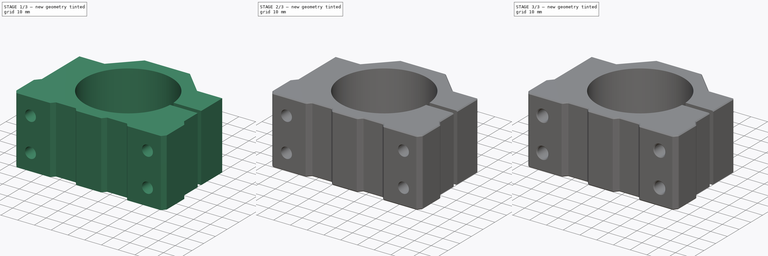
[diagram: build sequence overview — one tinted view per stage of 3, left to right]
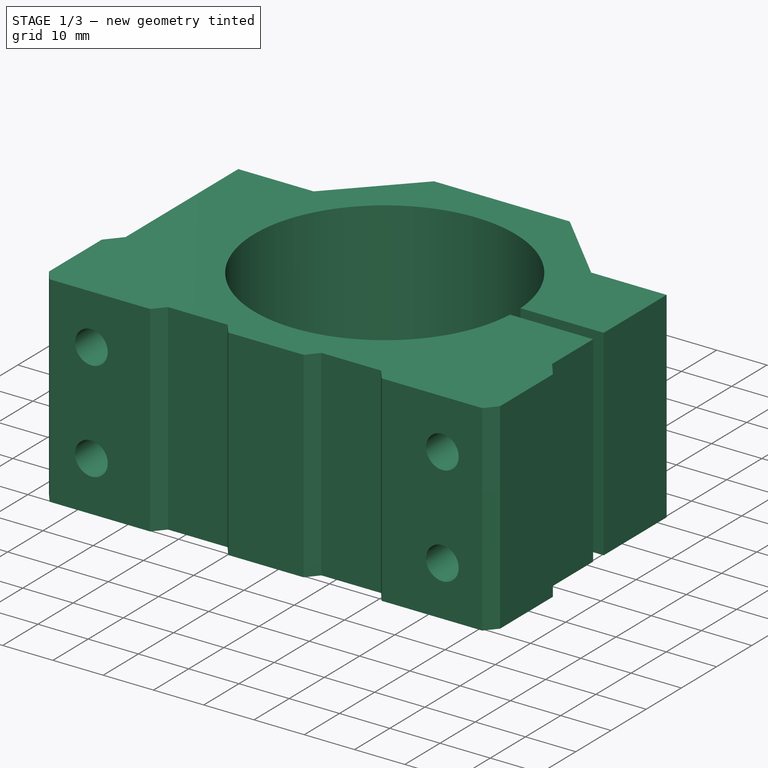
[diagram: stage 1 of 3 — iso view after this stage's code; geometry added in this stage tinted green]
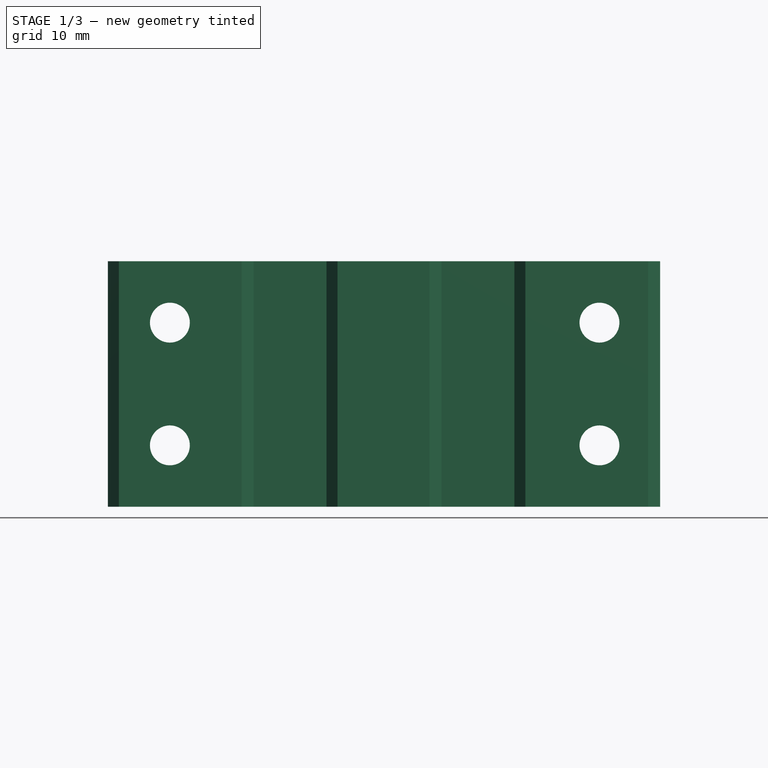
[diagram: stage 1 of 3 — front view after this stage's code; geometry added in this stage tinted green]
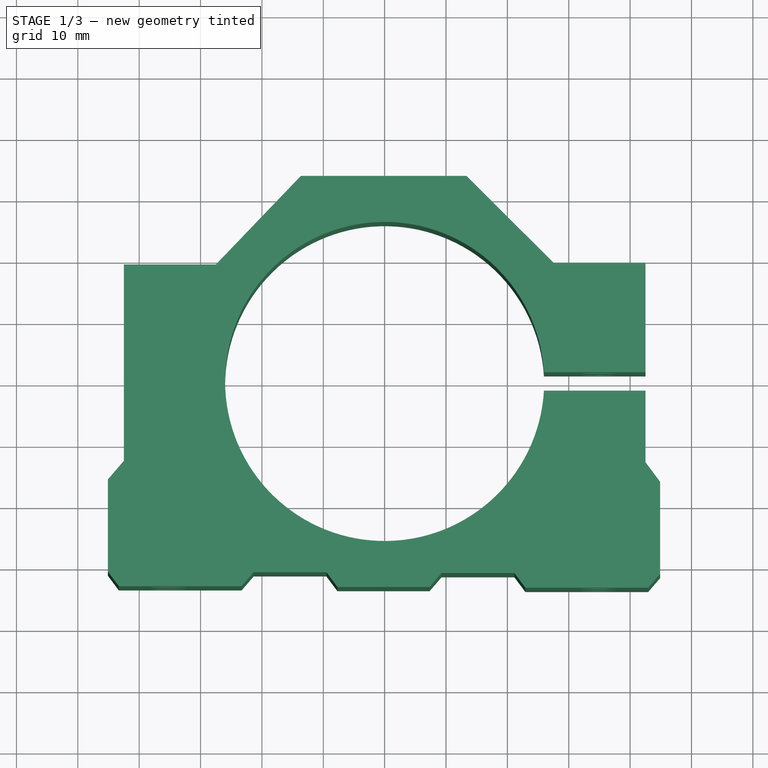
[diagram: stage 1 of 3 — top view after this stage's code; geometry added in this stage tinted green]
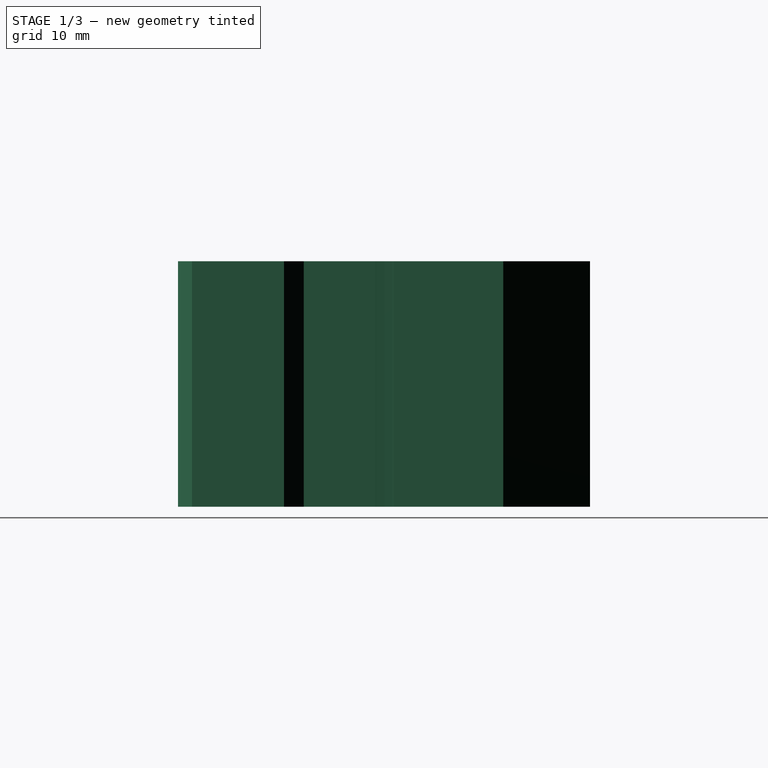
[diagram: stage 1 of 3 — right view after this stage's code; geometry added in this stage tinted green]
FCSTD DOCUMENT  (FreeCAD 0.19R23964 (Git))
Label: spindelmount52mm
License: All rights reserved
LicenseURL: http://en.wikipedia.org/wiki/All_rights_reserved
objects: PartDesign::Chamfer×4, Sketcher::SketchObject×2, PartDesign::Pad×1, PartDesign::Hole×1, PartDesign::Fillet×1, PartDesign::Body×1
note: 17 computed .brp shape members not serialized (recipe doc carries the construction recipe); baked Part::Feature solids carry a one-line shape summary decoded from their .brp

FEATURE [Sketcher::SketchObject] Sketch  label="Spindelhalter-Grundskizze"
  FullyConstrained = true
  MapMode = 5
  Support = -> [XY_Plane]
  sketch-geometry (26):
    g0: LineSegment StartX=25.9567 StartY=-1.5 StartZ=0 EndX=42.5 EndY=-1.5 EndZ=0
    g1: LineSegment StartX=42.5 StartY=-1.5 StartZ=0 EndX=42.5 EndY=-13.1483 EndZ=0
    g2: LineSegment StartX=42.5 StartY=-13.1483 StartZ=0 EndX=44.8928 EndY=-16.3537 EndZ=0
    g3: LineSegment StartX=44.8928 StartY=-16.3537 StartZ=0 EndX=44.8928 EndY=-31.3537 EndZ=0
    g4: LineSegment StartX=44.8928 StartY=-31.3537 StartZ=0 EndX=42.9374 EndY=-33.6289 EndZ=0
    g5: LineSegment StartX=42.9374 StartY=-33.6289 StartZ=0 EndX=22.9374 EndY=-33.6289 EndZ=0
    g6: LineSegment StartX=22.9374 StartY=-33.6289 StartZ=0 EndX=21.1428 EndY=-31.2248 EndZ=0
    g7: LineSegment StartX=21.1428 StartY=-31.2248 StartZ=0 EndX=9.26779 EndY=-31.2248 EndZ=0
    g8: LineSegment StartX=9.26779 StartY=-31.2248 StartZ=0 EndX=7.31238 EndY=-33.5 EndZ=0
    g9: LineSegment StartX=7.31238 StartY=-33.5 StartZ=0 EndX=-7.68762 EndY=-33.5 EndZ=0
    g10: LineSegment StartX=-7.68762 StartY=-33.5 StartZ=0 EndX=-9.48221 EndY=-31.096 EndZ=0
    g11: LineSegment StartX=-9.48221 StartY=-31.096 StartZ=0 EndX=-21.3572 EndY=-31.096 EndZ=0
    g12: LineSegment StartX=-21.3572 StartY=-31.096 StartZ=0 EndX=-23.3126 EndY=-33.3711 EndZ=0
    g13: LineSegment StartX=-23.3126 StartY=-33.3711 StartZ=0 EndX=-43.3126 EndY=-33.3711 EndZ=0
    g14: LineSegment StartX=-43.3126 StartY=-33.3711 StartZ=0 EndX=-45.1072 EndY=-30.9671 EndZ=0
    g15: LineSegment StartX=-45.1072 StartY=-30.9671 StartZ=0 EndX=-45.1072 EndY=-15.9671 EndZ=0
    g16: LineSegment StartX=-45.1072 StartY=-15.9671 StartZ=0 EndX=-42.5 EndY=-12.9335 EndZ=0
    g17: LineSegment StartX=-42.5 StartY=-12.9335 StartZ=0 EndX=-42.5 EndY=19.0665 EndZ=0
    g18: LineSegment StartX=-42.5 StartY=19.0665 StartZ=0 EndX=-27.5 EndY=19.0665 EndZ=0
    g19: LineSegment StartX=-27.5 StartY=19.0665 StartZ=0 EndX=-13.6554 EndY=33.5 EndZ=0
    g20: LineSegment StartX=-13.6554 StartY=33.5 StartZ=0 EndX=13.3446 EndY=33.5 EndZ=0
    g21: LineSegment StartX=13.3446 StartY=33.5 StartZ=0 EndX=27.5 EndY=19.3711 EndZ=0
    g22: LineSegment StartX=27.5 StartY=19.3711 StartZ=0 EndX=42.5 EndY=19.3711 EndZ=0
    g23: LineSegment StartX=42.5 StartY=19.3711 StartZ=0 EndX=42.5 EndY=1.5 EndZ=0
    g24: LineSegment StartX=42.5 StartY=1.5 StartZ=0 EndX=25.9567 EndY=1.5 EndZ=0
    g25: ArcOfCircle CenterX=0 CenterY=0 CenterZ=0 NormalX=0 NormalY=0 NormalZ=1 AngleXU=0 Radius=26 StartAngle=0.0577244 EndAngle=6.22546
  constraints (79):
    c: Horizontal(g0)
    c: Coincident(g0,g1)
    c: Vertical(g1)
    c: Coincident(g1,g2)
    c: Coincident(g2,g3)
    c: Vertical(g3)
    c: Coincident(g3,g4)
    c: Coincident(g4,g5)
    c: Horizontal(g5)
    c: Coincident(g5,g6)
    c: Coincident(g6,g7)
    c: Horizontal(g7)
    c: Coincident(g7,g8)
    c: Coincident(g8,g9)
    c: Horizontal(g9)
    c: Coincident(g9,g10)
    c: Coincident(g10,g11)
    c: Horizontal(g11)
    c: Coincident(g11,g12)
    c: Coincident(g12,g13)
    c: Horizontal(g13)
    c: Coincident(g14,g15)
    c: Vertical(g15)
    c: Coincident(g15,g16)
    c: Coincident(g16,g17)
    c: Vertical(g17)
    c: Coincident(g17,g18)
    c: Horizontal(g18)
    c: Coincident(g18,g19)
    c: Coincident(g19,g20)
    c: Horizontal(g20)
    c: Coincident(g20,g21)
    c: Coincident(g21,g22)
    c: Horizontal(g22)
    c: Coincident(g22,g23)
    c: Vertical(g23)
    c: Coincident(g23,g24)
    c: Horizontal(g24)
    c: Coincident(g25,g24)
    c: Coincident(g25,g0)
    c: Radius(g25) = 26
    c: DistanceX(g18,g18) = 15
    c: Equal(g18,g22)
    c: Equal(g22,g3)
    c: Equal(g3,g15)
    c: Equal(g15,g9)
    c: Coincident(g13,g14)
    c: Distance(g19) = 20
    c: Equal(g19,g21)
    c: Coincident(g25,g-1)
    c: DistanceX(g20,g20) = 27
    c: Distance(g14) = 3
    c: Equal(g14,g12)
    c: Equal(g12,g10)
    c: Equal(g10,g8)
    c: Equal(g8,g6)
    c: Equal(g6,g4)
    c: Distance(g16) = 4
    c: Parallel(g16,g12)
    c: Parallel(g12,g8)
    c: Parallel(g8,g4)
    c: Parallel(g2,g6)
    c: Parallel(g6,g10)
    c: Parallel(g10,g14)
    c: Equal(g13,g5)
    c: Equal(g11,g7)
    c: DistanceX(g15,g2) = 90
    c: DistanceX(g18,g21) = 55
    c: DistanceX(g25,g0) = 42.5
    c: DistanceX(g17,g25) = 42.5
    c: DistanceY(g9,g19) = 67
    c: Equal(g2,g16)
    c: DistanceY(g4,g22) = 53
    c: DistanceY(g25,g20) = 33.5
    c: DistanceY(g17,g17) = 32
    c: Equal(g11,g7)
    c: DistanceX(g13,g13) = 20
    c: DistanceY(g0,g23) = 3
    c: DistanceY(g0,g-1) = 1.5
FEATURE [PartDesign::Pad] Pad
  Direction = (1,1,1)
  Length = 40
  Length2 = 100
  Profile = -> Sketch
  Type = 0
FEATURE [Sketcher::SketchObject] Sketch001  label="Bohrung 6,5mm"
  FullyConstrained = true
  MapMode = 5
  Placement = pos=(0,19.3711,0) rot=(0,0.707107,0.707107;3.14159rad)
  Support = -> [Pad]
  sketch-geometry (8):
    g0: Circle CenterX=-35 CenterY=30 CenterZ=0 NormalX=0 NormalY=0 NormalZ=1 AngleXU=0 Radius=3.25
    g1: Circle CenterX=-35 CenterY=10 CenterZ=0 NormalX=0 NormalY=0 NormalZ=1 AngleXU=0 Radius=3.25
    g2: Circle CenterX=35 CenterY=30 CenterZ=0 NormalX=0 NormalY=0 NormalZ=1 AngleXU=0 Radius=3.25
    g3: Circle CenterX=35 CenterY=10 CenterZ=0 NormalX=0 NormalY=0 NormalZ=1 AngleXU=0 Radius=3.25
    g4: LineSegment StartX=-35 StartY=30 StartZ=0 EndX=-35 EndY=10 EndZ=0
    g5: LineSegment StartX=-35 StartY=10 StartZ=0 EndX=35 EndY=10 EndZ=0
    g6: LineSegment StartX=35 StartY=10 StartZ=0 EndX=35 EndY=30 EndZ=0
    g7: LineSegment StartX=35 StartY=30 StartZ=0 EndX=-35 EndY=30 EndZ=0
  constraints (20):
    c: Radius(g0) = 3.25
    c: Equal(g0,g1)
    c: Equal(g1,g3)
    c: Equal(g3,g2)
    c: Coincident(g4,g0)
    c: Coincident(g4,g1)
    c: Coincident(g5,g1)
    c: Coincident(g5,g3)
    c: Horizontal(g5)
    c: Coincident(g6,g3)
    c: Coincident(g6,g2)
    c: Coincident(g7,g2)
    c: Coincident(g7,g0)
    c: Vertical(g6)
    c: DistanceY(g4,g4) = 20
    c: Equal(g4,g6)
    c: Equal(g7,g5)
    c: DistanceY(g-1,g1) = 10
    c: DistanceX(g5,g5) = 70
    c: DistanceX(g1,g-1) = 35
FEATURE [PartDesign::Hole] Hole
  BaseFeature = -> Pad
  Depth = 100
  DepthType = 0
  Diameter = 6.5
  DrillForDepth = false
  DrillPoint = 0
  DrillPointAngle = 118
  HoleCutCountersinkAngle = 90
  HoleCutCustomValues = false
  HoleCutDepth = 0
  HoleCutDiameter = 0
  HoleCutType = 0
  ModelActualThread = false
  Profile = -> Sketch001
  Tapered = false
  TaperedAngle = 90
  ThreadAngle = 0
  ThreadClass = 0
  ThreadCutOffInner = 0
  ThreadCutOffOuter = 0
  ThreadDirection = 0
  ThreadFit = 0
  ThreadPitch = 0
  ThreadSize = 0
  ThreadType = 0
  Threaded = false
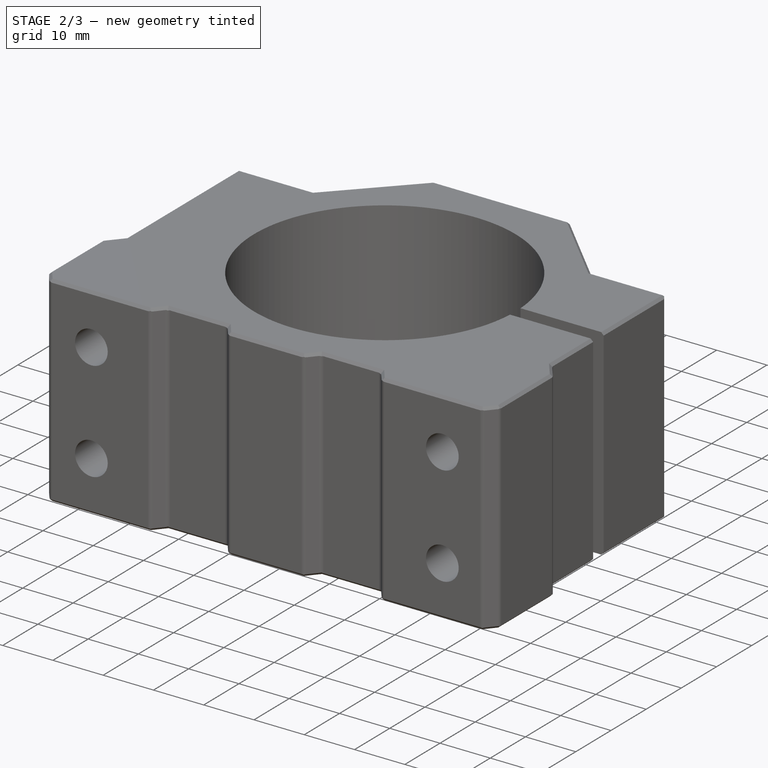
[diagram: stage 2 of 3 — iso view after this stage's code; geometry added in this stage tinted green]
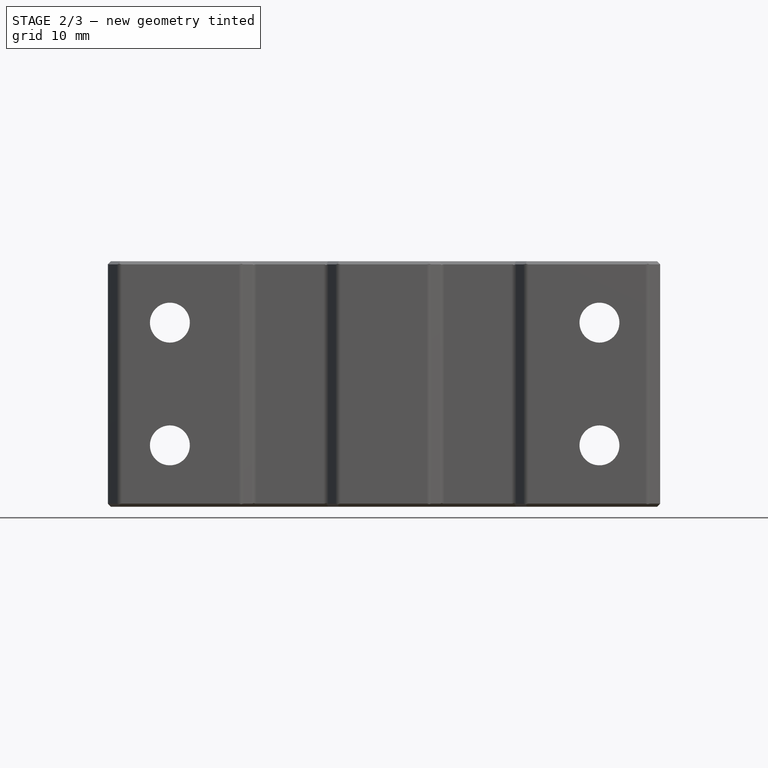
[diagram: stage 2 of 3 — front view after this stage's code; geometry added in this stage tinted green]
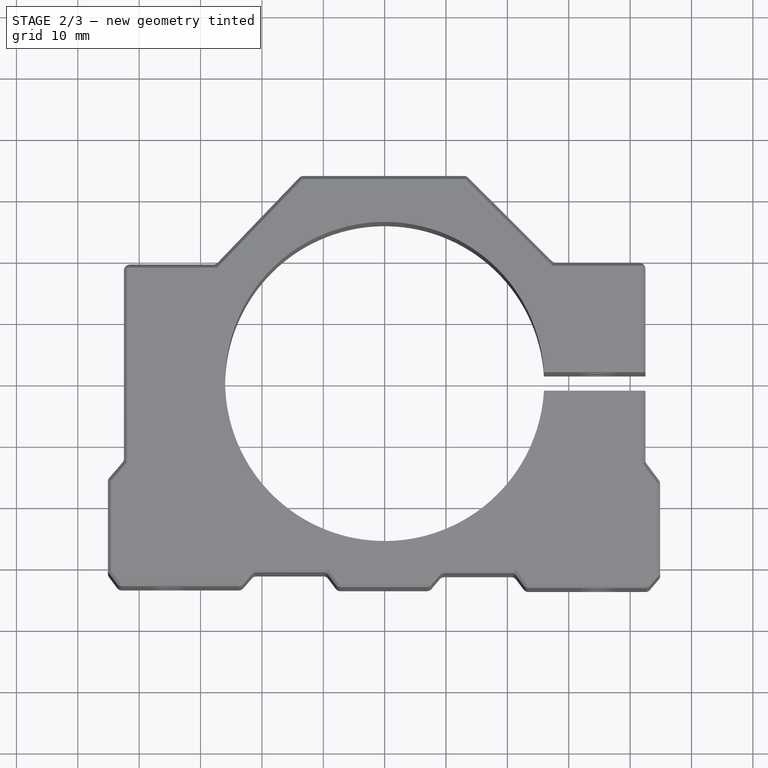
[diagram: stage 2 of 3 — top view after this stage's code; geometry added in this stage tinted green]
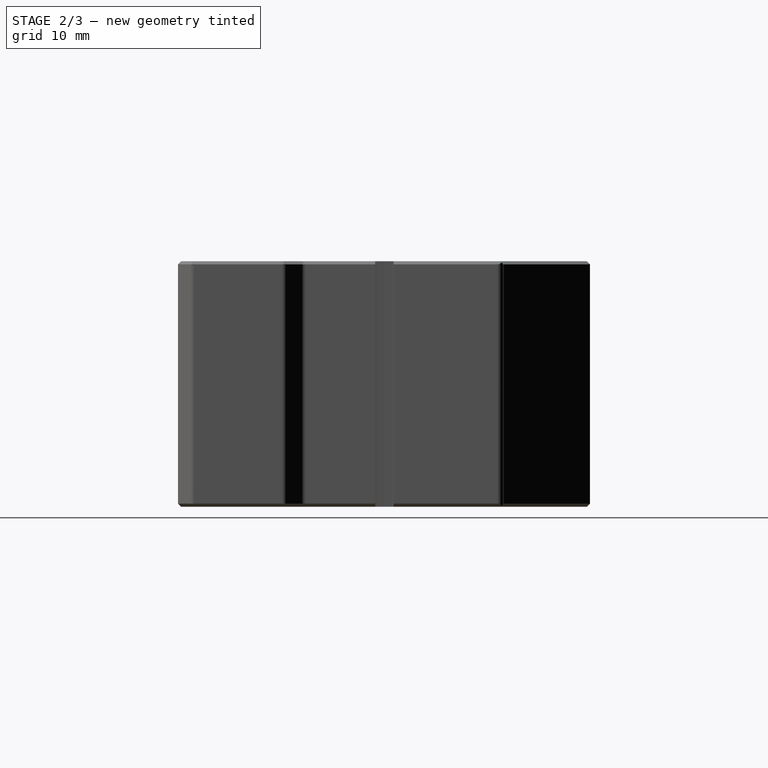
[diagram: stage 2 of 3 — right view after this stage's code; geometry added in this stage tinted green]
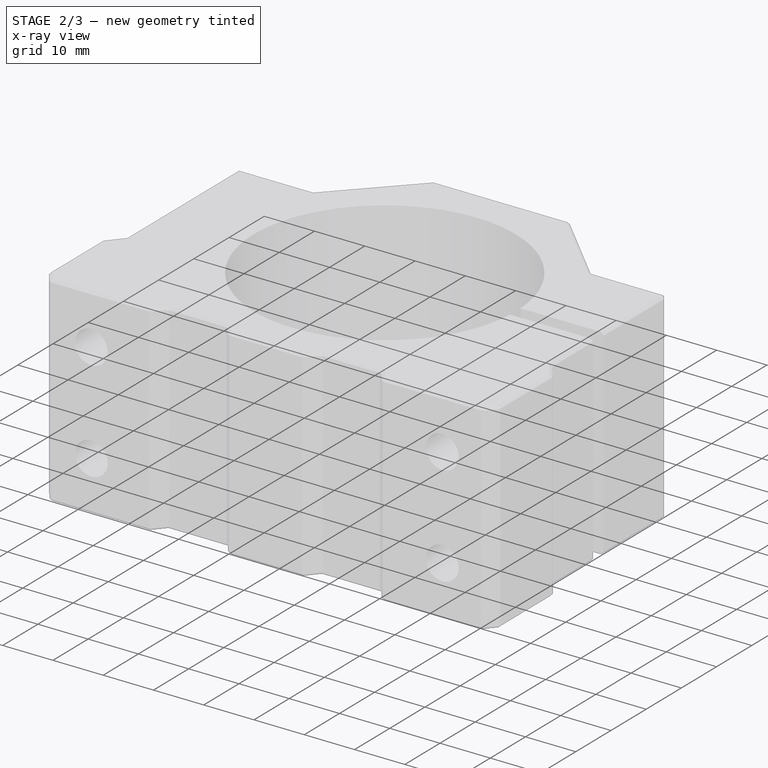
[diagram: stage 2 of 3 — x-ray composite at the iso view; earlier geometry ghosted, this stage's added geometry solid]
FEATURE [PartDesign::Chamfer] Chamfer
  Angle = 45
  Base = -> Hole [Edge37,Edge36,Edge35,Edge34,Edge56,Edge55,Edge54,Edge53,Edge52,Edge51,Edge50,Edge49,Edge48,Edge47,Edge46,Edge45,Edge44,Edge43,Edge42,Edge41,Edge40,Edge39,Edge38]
  BaseFeature = -> Hole
  ChamferType = 0
  FlipDirection = false
  Size = 0.5
  Size2 = 1
  SupportTransform = false
FEATURE [PartDesign::Chamfer] Chamfer001
  Angle = 45
  Base = -> Chamfer [Edge57,Edge58,Edge59,Edge60,Edge37,Edge39,Edge40,Edge41,Edge42,Edge43,Edge44,Edge45,Edge46,Edge47,Edge48,Edge49,Edge50,Edge51,Edge52,Edge53,Edge54,Edge55,Edge56]
  BaseFeature = -> Chamfer
  ChamferType = 0
  FlipDirection = false
  Size = 0.5
  Size2 = 1
  SupportTransform = false
FEATURE [PartDesign::Fillet] Fillet
  Base = -> Chamfer001 [Edge164,Edge169,Edge170,Edge172,Edge174,Edge176,Edge180,Edge182,Edge184,Edge186,Edge185,Edge183,Edge181,Edge179,Edge175,Edge173,Edge171,Edge162,Edge161,Edge163,Edge71,Edge11]
  BaseFeature = -> Chamfer001
  Radius = 1
  SupportTransform = false
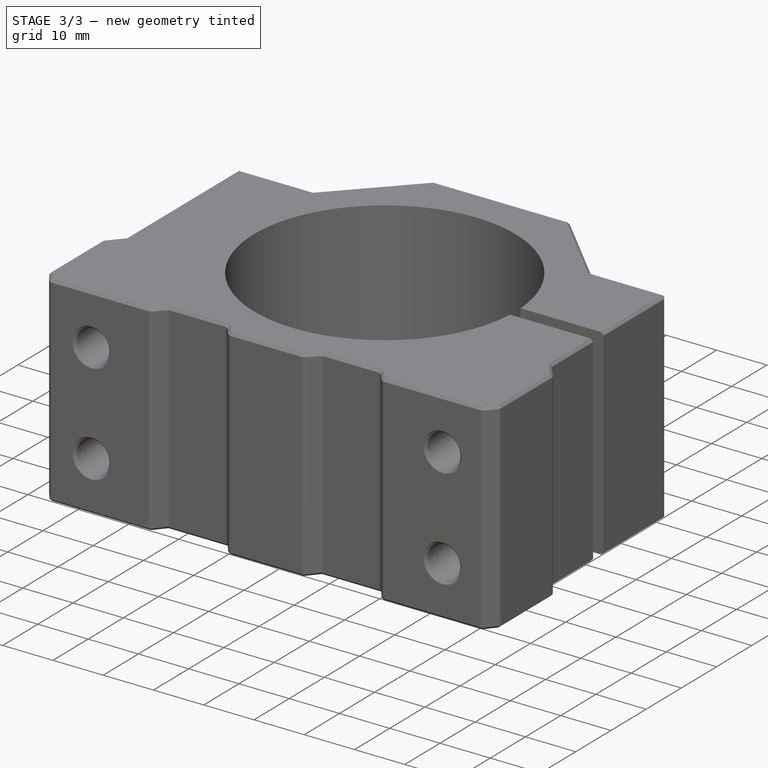
[diagram: stage 3 of 3 — iso view after this stage's code; geometry added in this stage tinted green]
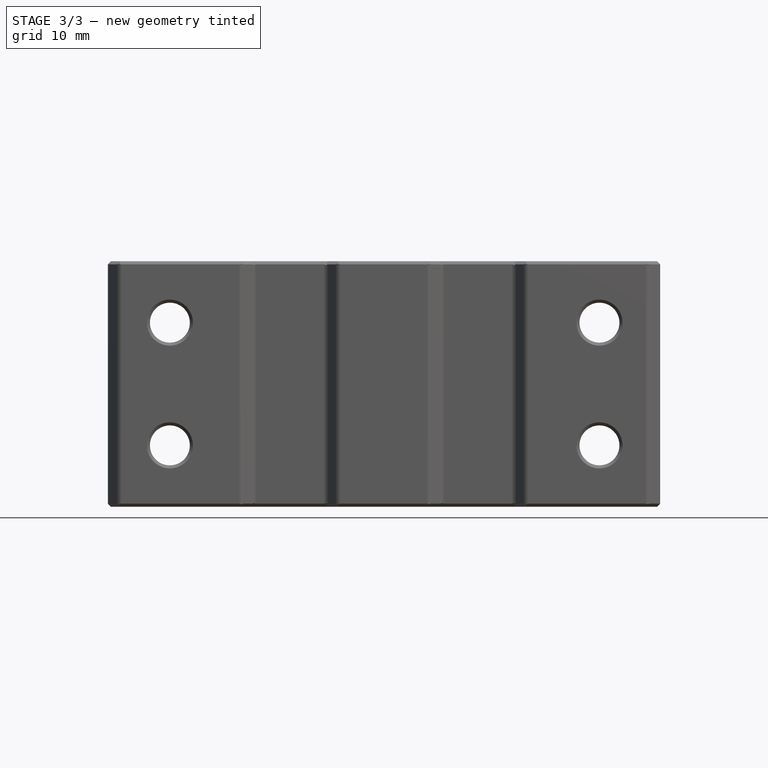
[diagram: stage 3 of 3 — front view after this stage's code; geometry added in this stage tinted green]
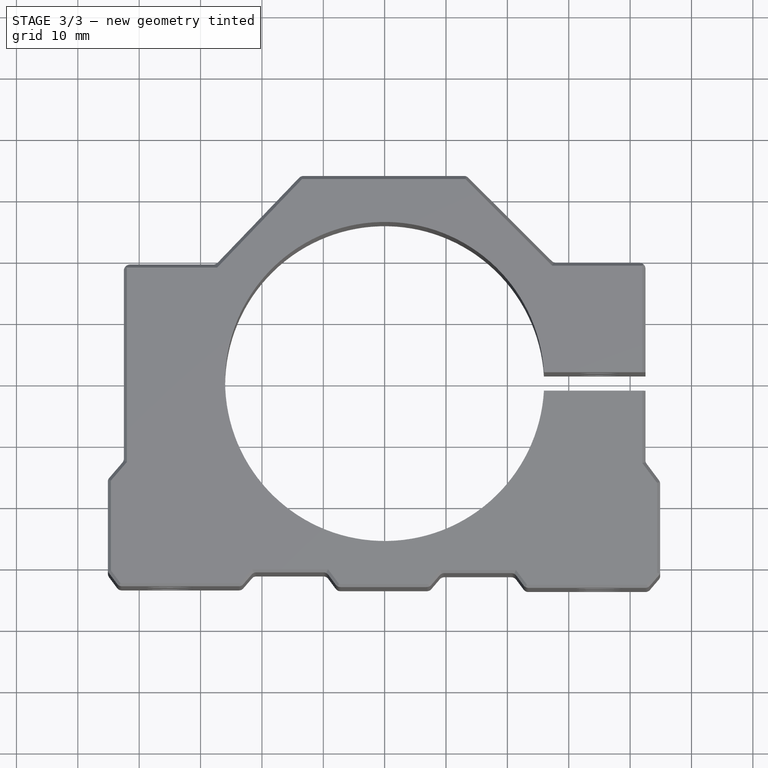
[diagram: stage 3 of 3 — top view after this stage's code; geometry added in this stage tinted green]
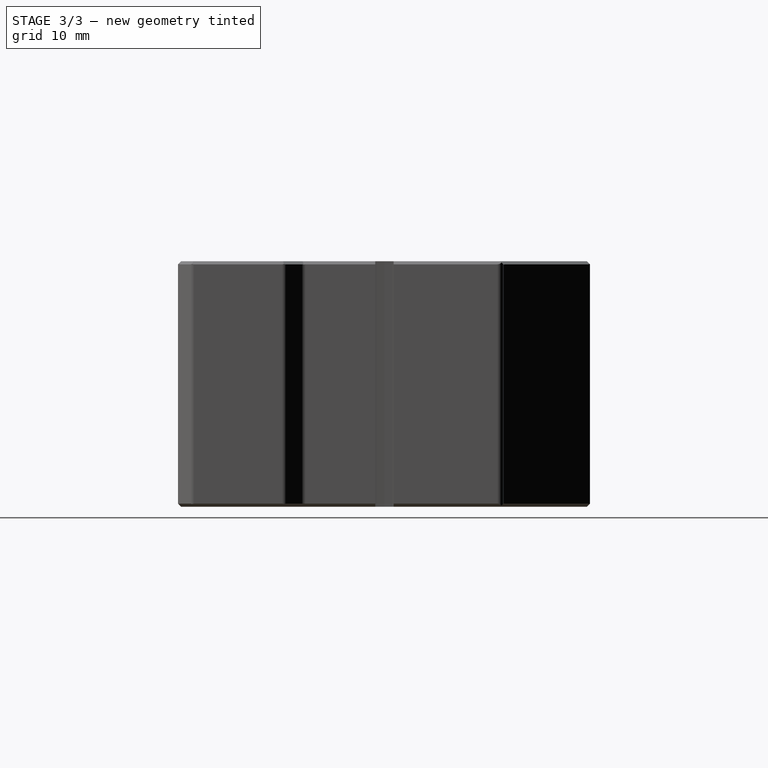
[diagram: stage 3 of 3 — right view after this stage's code; geometry added in this stage tinted green]
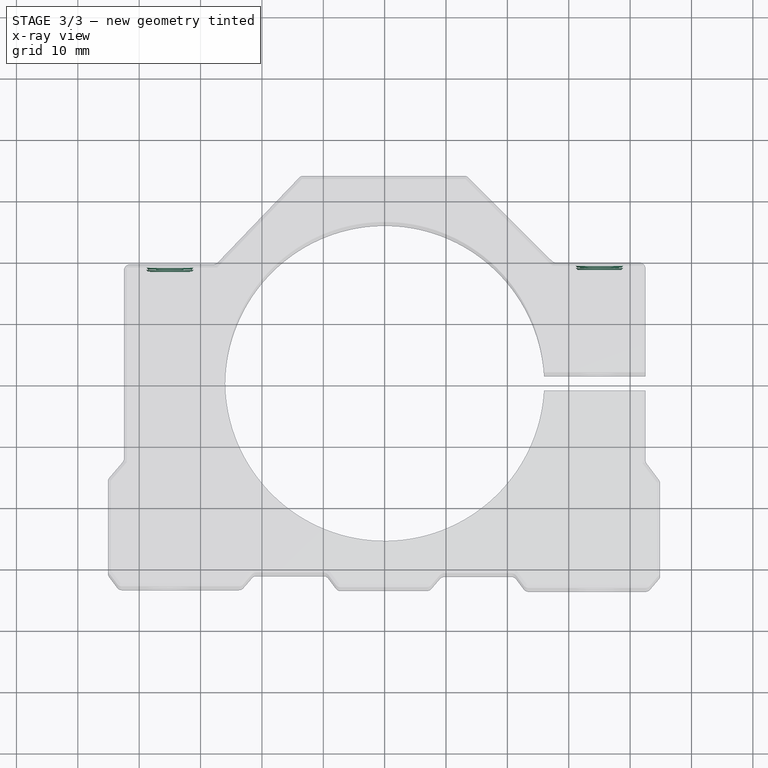
[diagram: stage 3 of 3 — x-ray composite at the top view; earlier geometry ghosted, this stage's added geometry solid]
FEATURE [PartDesign::Chamfer] Chamfer002
  Angle = 45
  Base = -> Fillet [Edge257,Edge259,Edge280,Edge279]
  BaseFeature = -> Fillet
  ChamferType = 0
  FlipDirection = false
  Size = 1
  Size2 = 1
  SupportTransform = false
FEATURE [PartDesign::Chamfer] Chamfer003
  Angle = 45
  Base = -> Chamfer002 [Edge301,Edge302,Edge258,Edge260]
  BaseFeature = -> Chamfer002
  ChamferType = 0
  FlipDirection = false
  Size = 0.5
  Size2 = 1
  SupportTransform = false
FEATURE [PartDesign::Body] Body
  Group = -> [Sketch,Pad,Sketch001,Hole,Chamfer,Chamfer001,Fillet,Chamfer002,Chamfer003]
  Origin = -> Origin
  Tip = -> Chamfer003
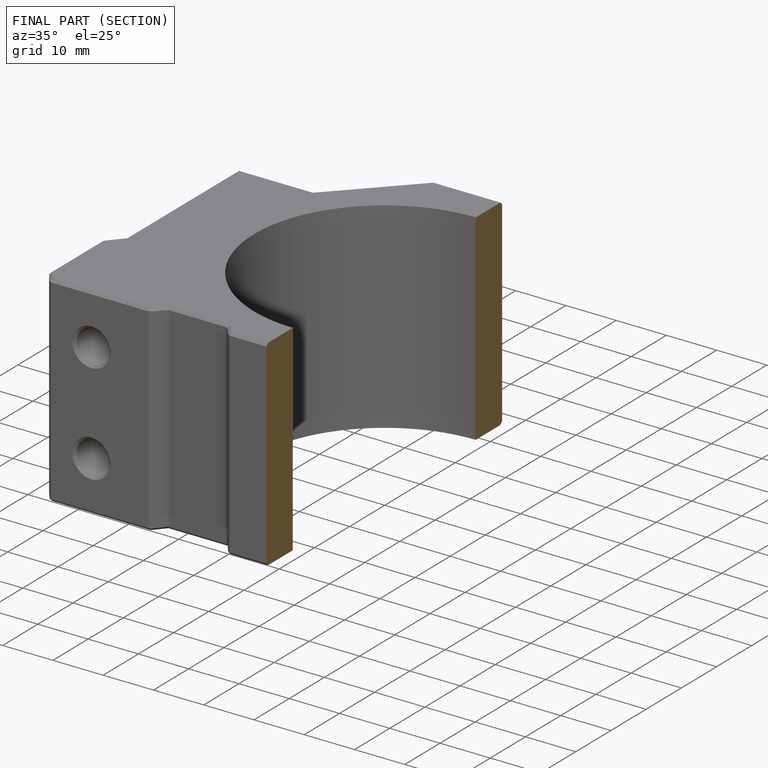
[diagram: finished part — half-section view (interior)]
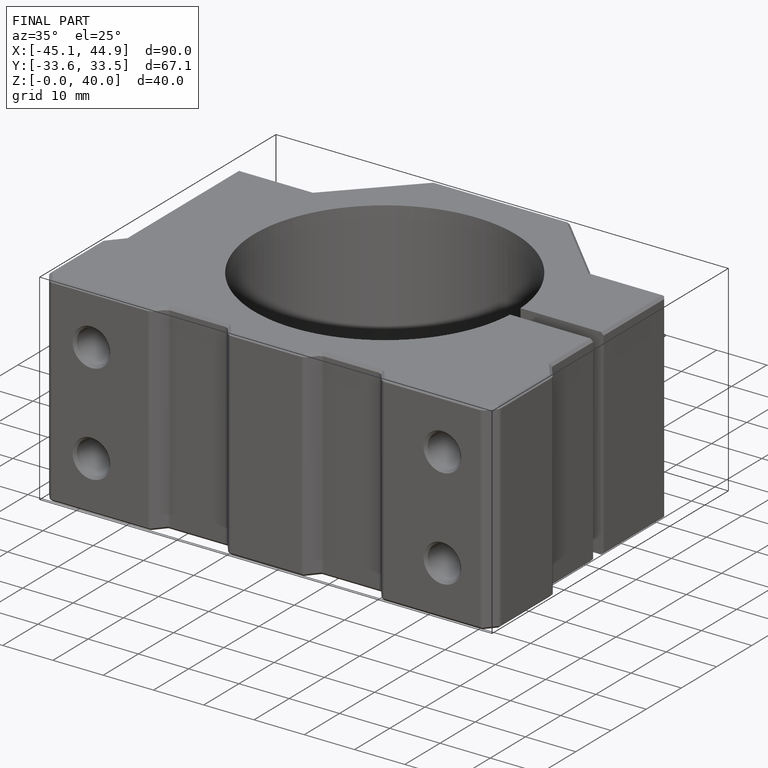
[diagram: finished part — iso view with bounding-box wireframe]
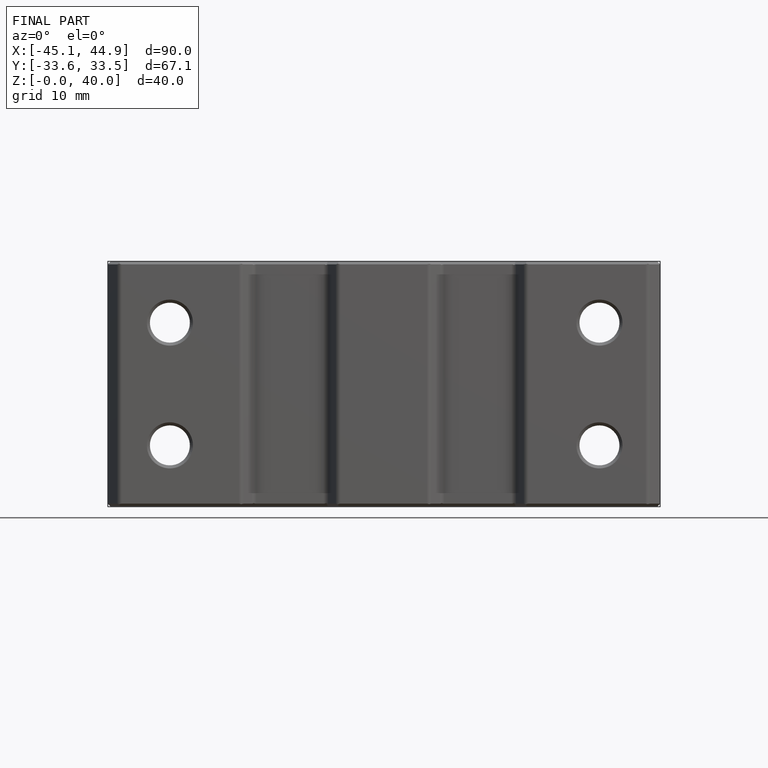
[diagram: finished part — front view with bounding-box wireframe]
